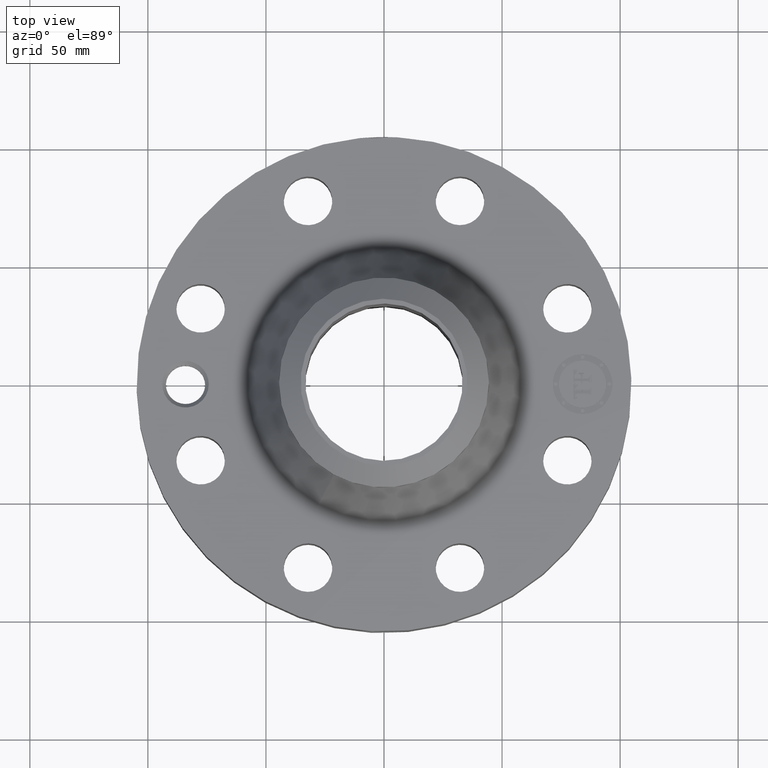
[diagram: clean part render]
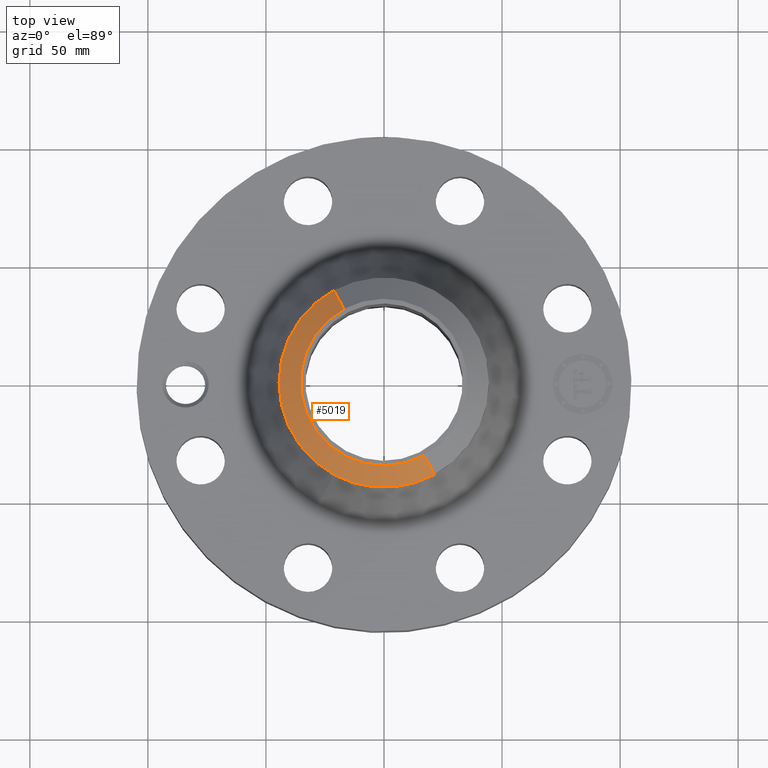
[diagram: same view with one face highlighted and labeled with its STEP entity id]
A machine part, top view. The second image highlights one B-rep face of the part: STEP entity #5019.
In plain terms, the highlighted conical surface has half-angle 52.5 deg.
Its self-contained STEP definition (entity closure, byte-faithful):
#3741=AXIS2_PLACEMENT_3D('Circle Axis2P3D',#3739,#3740,$) ;
#3754=AXIS2_PLACEMENT_3D('Circle Axis2P3D',#3752,#3753,$) ;
#4596=AXIS2_PLACEMENT_3D('Circle Axis2P3D',#4594,#4595,$) ;
#4992=AXIS2_PLACEMENT_3D('Cone Axis2P3D',#4989,#4990,#4991) ;
#3722=CARTESIAN_POINT('Vertex',(-0.838994692561,-1.53576948331,3.28433022715)) ;
#3736=CARTESIAN_POINT('Vertex',(0.838994692561,-1.53576948331,3.28433022715)) ;
#3739=CARTESIAN_POINT('Axis2P3D Location',(0.,0.,3.28433022715)) ;
#3752=CARTESIAN_POINT('Axis2P3D Location',(0.,0.,3.28433022715)) ;
#3756=CARTESIAN_POINT('Vertex',(-0.838994692561,1.53576948331,3.28433022715)) ;
#4589=CARTESIAN_POINT('Vertex',(0.666756349061,-1.22048931033,3.56000000001)) ;
#4591=CARTESIAN_POINT('Vertex',(-0.666756349061,1.22048931033,3.56000000001)) ;
#4594=CARTESIAN_POINT('Axis2P3D Location',(0.,0.,3.56000000001)) ;
#4989=CARTESIAN_POINT('Axis2P3D Location',(0.,0.,3.56000000001)) ;
#4994=CARTESIAN_POINT('Line Origine',(-0.752875520811,1.37812939682,3.42216511358)) ;
#4999=CARTESIAN_POINT('Line Origine',(0.752875520811,-1.37812939682,3.42216511358)) ;
#3740=DIRECTION('Axis2P3D Direction',(0.,0.,-0.0393700787402)) ;
#3753=DIRECTION('Axis2P3D Direction',(0.,0.,-0.0393700787402)) ;
#4595=DIRECTION('Axis2P3D Direction',(0.,0.,-0.0393700787402)) ;
#4990=DIRECTION('Axis2P3D Direction',(-0.,-0.,-0.0393700787402)) ;
#4991=DIRECTION('Axis2P3D XDirection',(0.0188750212049,-0.0345504945626,0.)) ;
#4995=DIRECTION('Vector Direction',(-0.014974561121,0.02741075027,-0.023966985394)) ;
#5000=DIRECTION('Vector Direction',(0.014974561121,-0.02741075027,-0.023966985394)) ;
#4996=VECTOR('Line Direction',#4995,0.0393700787402) ;
#5001=VECTOR('Line Direction',#5000,0.0393700787402) ;
#5013=ORIENTED_EDGE('',*,*,#5003,.F.) ;
#5014=ORIENTED_EDGE('',*,*,#4598,.F.) ;
#5015=ORIENTED_EDGE('',*,*,#4998,.T.) ;
#5016=ORIENTED_EDGE('',*,*,#3758,.T.) ;
#5017=ORIENTED_EDGE('',*,*,#3743,.F.) ;
#5019=ADVANCED_FACE('PartBody',(#5018),#4993,.T.) ;
#3742=CIRCLE('generated circle',#3741,1.75000000001) ;
#3755=CIRCLE('generated circle',#3754,1.75000000001) ;
#4597=CIRCLE('generated circle',#4596,1.39074015749) ;
#4993=CONICAL_SURFACE('Cone',#4992,1.39074015749,0.916297857297) ;
#3743=EDGE_CURVE('',#3737,#3723,#3742,.T.) ;
#3758=EDGE_CURVE('',#3757,#3723,#3755,.F.) ;
#4598=EDGE_CURVE('',#4592,#4590,#4597,.F.) ;
#4998=EDGE_CURVE('',#4592,#3757,#4997,.T.) ;
#5003=EDGE_CURVE('',#4590,#3737,#5002,.T.) ;
#5012=EDGE_LOOP('',(#5013,#5014,#5015,#5016,#5017)) ;
#5018=FACE_OUTER_BOUND('',#5012,.T.) ;
#4997=LINE('Line',#4994,#4996) ;
#5002=LINE('Line',#4999,#5001) ;
#3723=VERTEX_POINT('',#3722) ;
#3737=VERTEX_POINT('',#3736) ;
#3757=VERTEX_POINT('',#3756) ;
#4590=VERTEX_POINT('',#4589) ;
#4592=VERTEX_POINT('',#4591) ;